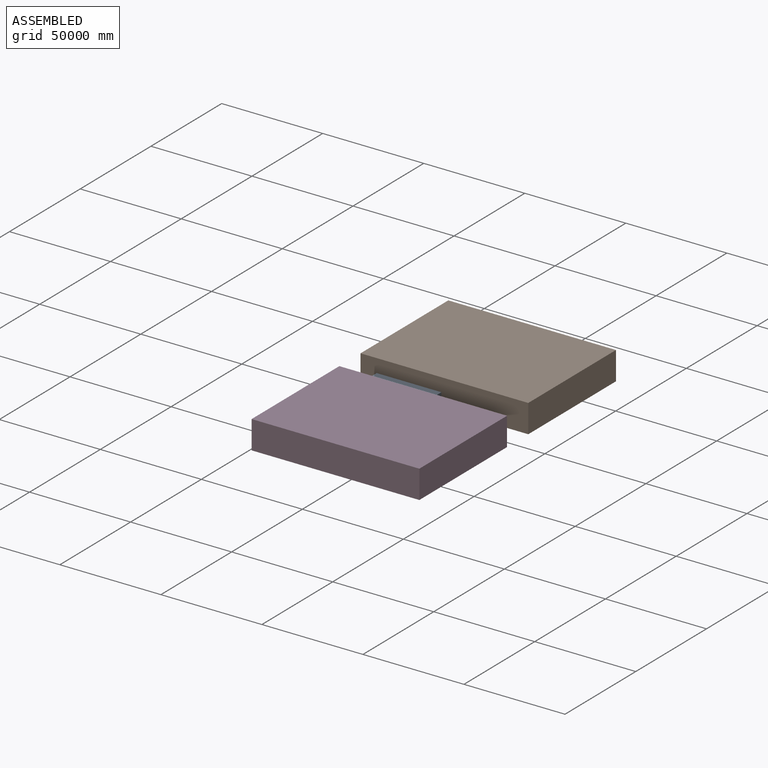
[diagram: assembled view]
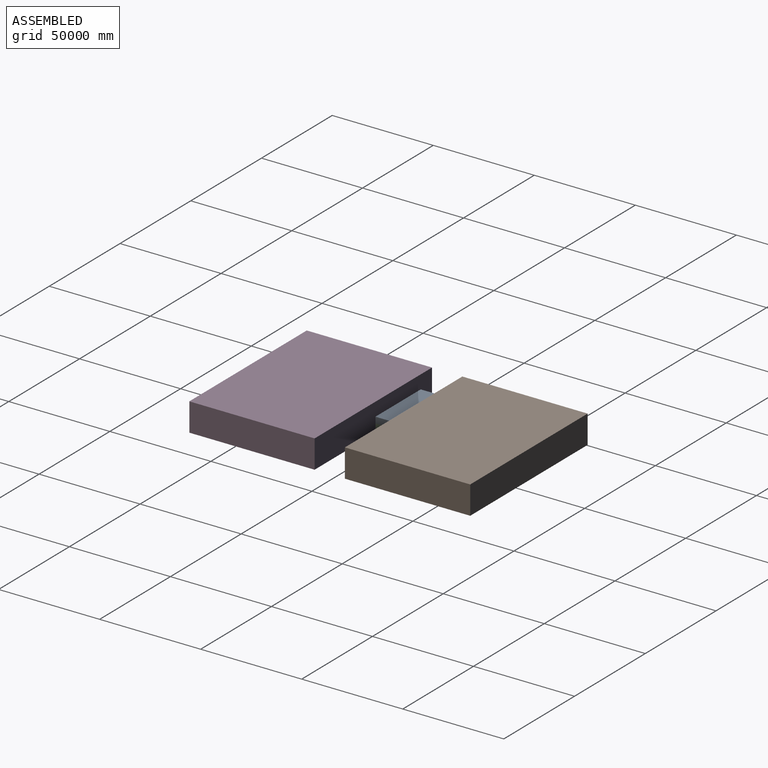
[diagram: assembled view, second angle]
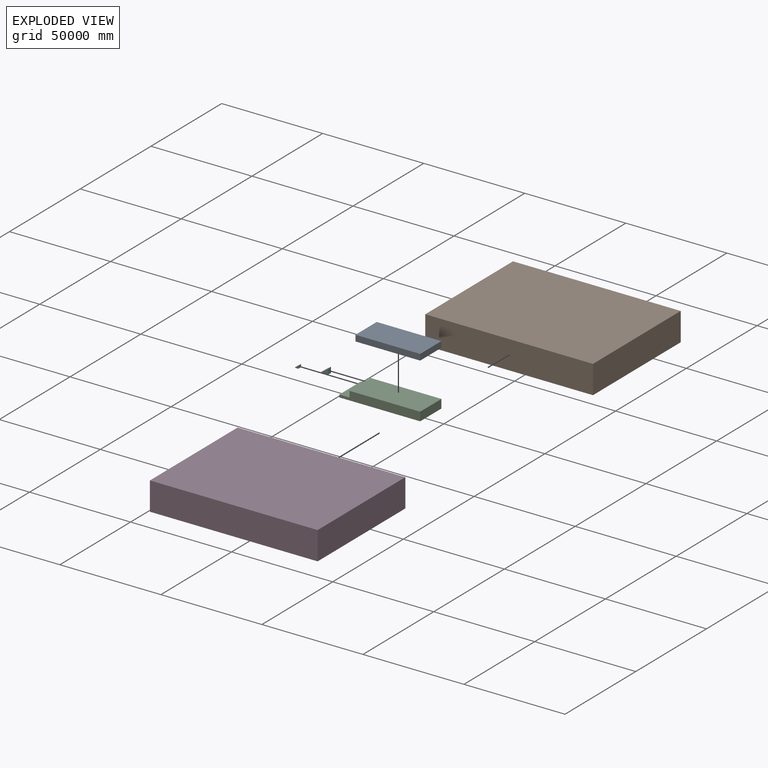
[diagram: exploded view]
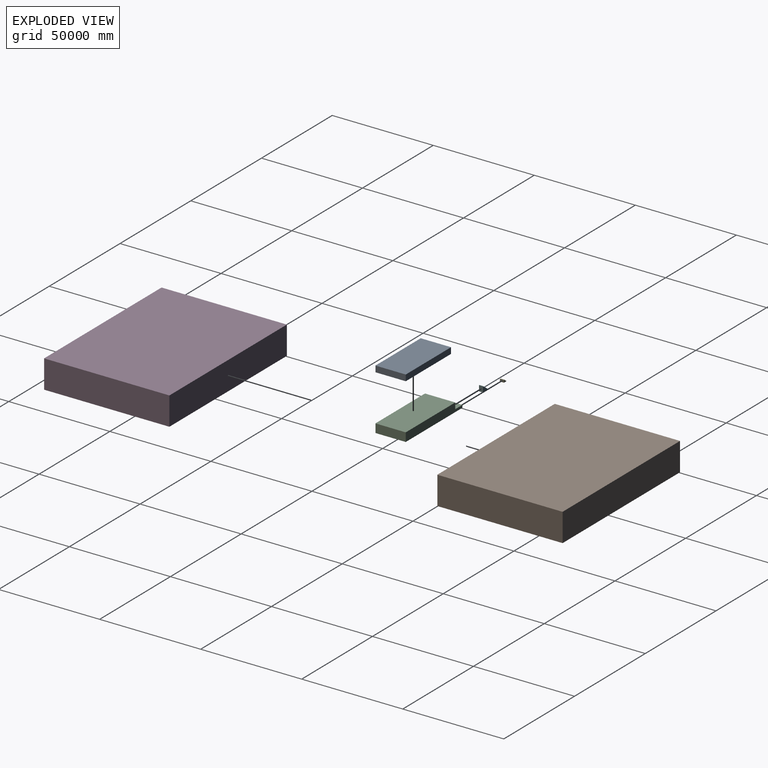
[diagram: exploded view, second angle]
ASSEMBLY  parts=6 mates=5
PART A: 6 faces, bbox 32000x15000x3000 mm
  f0: plane 32000x15000mm, normal (0,0,1), area 480000000mm2, adj f1,f3,f4,f5
  f1: plane 15000x3000mm, normal (-1,0,0), area 45000000mm2, adj f0,f2,f4,f5
  f2: plane 32000x15000mm, normal (0,0,-1), area 480000000mm2, adj f1,f3,f4,f5
  f3: plane 15000x3000mm, normal (1,0,0), area 45000000mm2, adj f0,f2,f4,f5
  f4: plane 32000x3000mm, normal (0,-1,0), area 96000000mm2, adj f0,f1,f2,f3
  f5: plane 32000x3000mm, normal (0,1,0), area 96000000mm2, adj f0,f1,f2,f3
PART B: 6 faces, bbox 83000x62000x14000 mm
  f0: plane 83000x14000mm, normal (0,1,0), area 1162000000mm2, adj f1,f3,f4,f5
  f1: plane 62000x14000mm, normal (-1,0,0), area 868000000mm2, adj f0,f2,f4,f5
  f2: plane 83000x14000mm, normal (0,-1,0), area 1162000000mm2, adj f1,f3,f4,f5
  f3: plane 62000x14000mm, normal (1,0,0), area 868000000mm2, adj f0,f2,f4,f5
  f4: plane 83000x62000mm, normal (0,0,1), area 5146000000mm2, adj f0,f1,f2,f3
  f5: plane 83000x62000mm, normal (0,0,-1), area 5146000000mm2, adj f0,f1,f2,f3
PART C: 8 faces, bbox 40000x15000x4300 mm
  f0: plane 15000x4300mm, normal (1,0,0), area 64500000mm2, adj f1,f5,f6,f7
  f1: plane 35000x15000mm, normal (0,0,1), area 525000000mm2, adj f0,f2,f6,f7
  f2: plane 15000x3000mm, normal (-1,0,0), area 45000000mm2, adj f1,f3,f6,f7
  f3: plane 15000x5000mm, normal (0,0,1), area 75000000mm2, adj f2,f4,f6,f7
  f4: plane 15000x1300mm, normal (-1,0,0), area 19500000mm2, adj f3,f5,f6,f7
  f5: plane 40000x15000mm, normal (0,0,-1), area 600000000mm2, adj f0,f4,f6,f7
  f6: plane 40000x4300mm, normal (0,-1,0), area 157000000mm2, adj f0,f1,f2,f3,f4,f5
  f7: plane 40000x4300mm, normal (0,1,0), area 157000000mm2, adj f0,f1,f2,f3,f4,f5
PART D: same geometry as B
PART E: 12 faces, bbox 1600x2000x1200 mm
  f0: plane 2000x300mm, normal (-1,0,0), area 600000mm2, adj f1,f9,f10,f11
  f1: plane 2000x1600mm, normal (0,0,-1), area 3200000mm2, adj f0,f2,f10,f11
  f2: plane 2000x1200mm, normal (1,0,0), area 2400000mm2, adj f1,f3,f10,f11
  f3: plane 2000x400mm, normal (0,0,1), area 800000mm2, adj f2,f4,f10,f11
  f4: plane 2000x300mm, normal (-1,0,0), area 600000mm2, adj f3,f5,f10,f11
  f5: plane 2000x400mm, normal (0,0,1), area 800000mm2, adj f4,f6,f10,f11
  f6: plane 2000x300mm, normal (-1,0,0), area 600000mm2, adj f5,f7,f10,f11
  f7: plane 2000x400mm, normal (0,0,1), area 800000mm2, adj f6,f8,f10,f11
  f8: plane 2000x300mm, normal (-1,0,0), area 600000mm2, adj f7,f9,f10,f11
  f9: plane 2000x400mm, normal (0,0,1), area 800000mm2, adj f0,f8,f10,f11
  f10: plane 1600x1200mm, normal (0,-1,0), area 1200000mm2, adj f0,f1,f2,f3,f4,f5,f6,f7
  f11: plane 1600x1200mm, normal (0,1,0), area 1200000mm2, adj f0,f1,f2,f3,f4,f5,f6,f7
PART F: 22 faces, bbox 3500x2000x2700 mm
  f0: plane 2000x300mm, normal (-1,0,0), area 600000mm2, adj f1,f19,f20,f21
  f1: plane 3500x2000mm, normal (0,0,-1), area 7000000mm2, adj f0,f2,f20,f21
  f2: plane 2700x2000mm, normal (1,0,0), area 5400000mm2, adj f1,f3,f20,f21
  f3: plane 2000x300mm, normal (0,0,1), area 600000mm2, adj f2,f4,f20,f21
  f4: plane 2000x300mm, normal (-1,0,0), area 600000mm2, adj f3,f5,f20,f21
  f5: plane 2000x400mm, normal (0,0,1), area 800000mm2, adj f4,f6,f20,f21
  f6: plane 2000x300mm, normal (-1,0,0), area 600000mm2, adj f5,f7,f20,f21
  f7: plane 2000x400mm, normal (0,0,1), area 800000mm2, adj f6,f8,f20,f21
  f8: plane 2000x300mm, normal (-1,0,0), area 600000mm2, adj f7,f9,f20,f21
  f9: plane 2000x400mm, normal (0,0,1), area 800000mm2, adj f8,f10,f20,f21
  f10: plane 2000x300mm, normal (-1,0,0), area 600000mm2, adj f9,f11,f20,f21
  f11: plane 2000x400mm, normal (0,0,1), area 800000mm2, adj f10,f12,f20,f21
  f12: plane 2000x300mm, normal (-1,0,0), area 600000mm2, adj f11,f13,f20,f21
  f13: plane 2000x400mm, normal (0,0,1), area 800000mm2, adj f12,f14,f20,f21
  f14: plane 2000x300mm, normal (-1,0,0), area 600000mm2, adj f13,f15,f20,f21
  f15: plane 2000x400mm, normal (0,0,1), area 800000mm2, adj f14,f16,f20,f21
  f16: plane 2000x300mm, normal (-1,0,0), area 600000mm2, adj f15,f17,f20,f21
  f17: plane 2000x400mm, normal (0,0,1), area 800000mm2, adj f16,f18,f20,f21
  f18: plane 2000x300mm, normal (-1,0,0), area 600000mm2, adj f17,f19,f20,f21
  f19: plane 2000x400mm, normal (0,0,1), area 800000mm2, adj f0,f18,f20,f21
  f20: plane 3500x2700mm, normal (0,-1,0), area 5130000mm2, adj f0,f1,f2,f3,f4,f5,f6,f7
  f21: plane 3500x2700mm, normal (0,1,0), area 5130000mm2, adj f0,f1,f2,f3,f4,f5,f6,f7
PLACE A t=(-22198.97,7123.09,-516.49)mm
PLACE B t=(-4698.97,38123.09,-6316.49)mm
PLACE C t=(-35739.41,7123.09,-3950.79)mm fixed
PLACE D t=(-4698.97,-38876.91,-6316.49)mm
PLACE E t=(-47064.63,7123.09,-5823.44)mm
PLACE F t=(-41955.52,7123.09,-3511)mm
MATE fastened A.f2 <-> C.f1  axis (0,0,-1) through (-6198.97,7123.09,-2016.49)mm
MATE fastened C.f4 <-> E.f2  axis (-1,0,0) through (-46198.97,7123.09,-6316.49)mm
MATE fastened C.f3 <-> F.f1  axis (0,0,1) through (-41198.97,7123.09,-5016.49)mm
MATE fastened C.f6 <-> D.f0  axis (0,-1,0) through (-46198.97,-7876.91,-6316.49)mm
MATE fastened C.f7 <-> B.f2  axis (0,1,0) through (-46198.97,7123.09,-6316.49)mm
